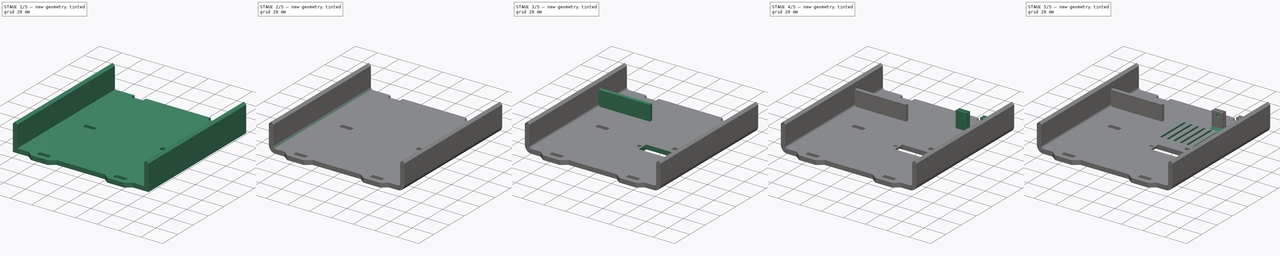
[diagram: build sequence overview — one tinted view per stage of 5, left to right]
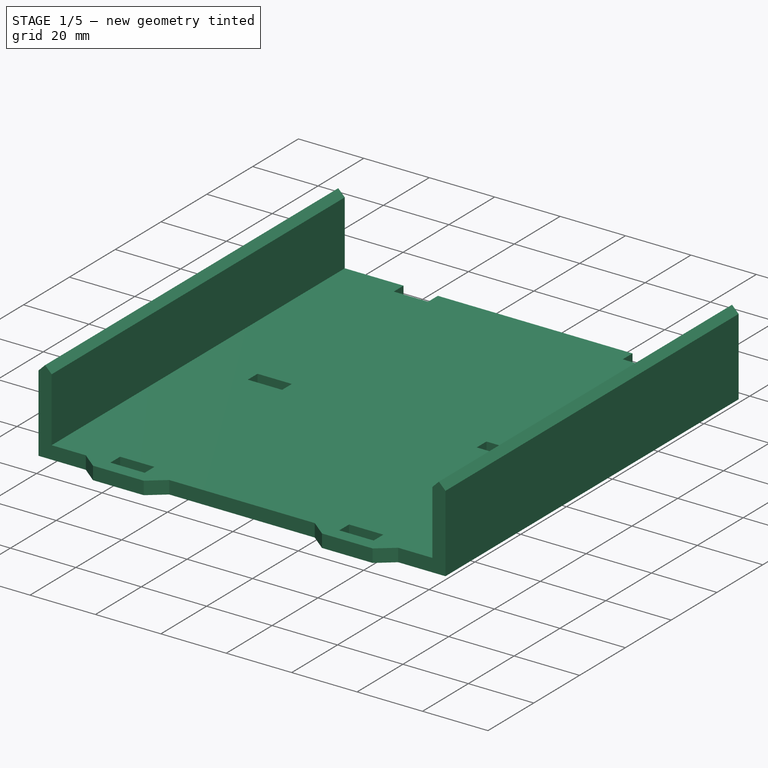
[diagram: stage 1 of 5 — iso view after this stage's code; geometry added in this stage tinted green]
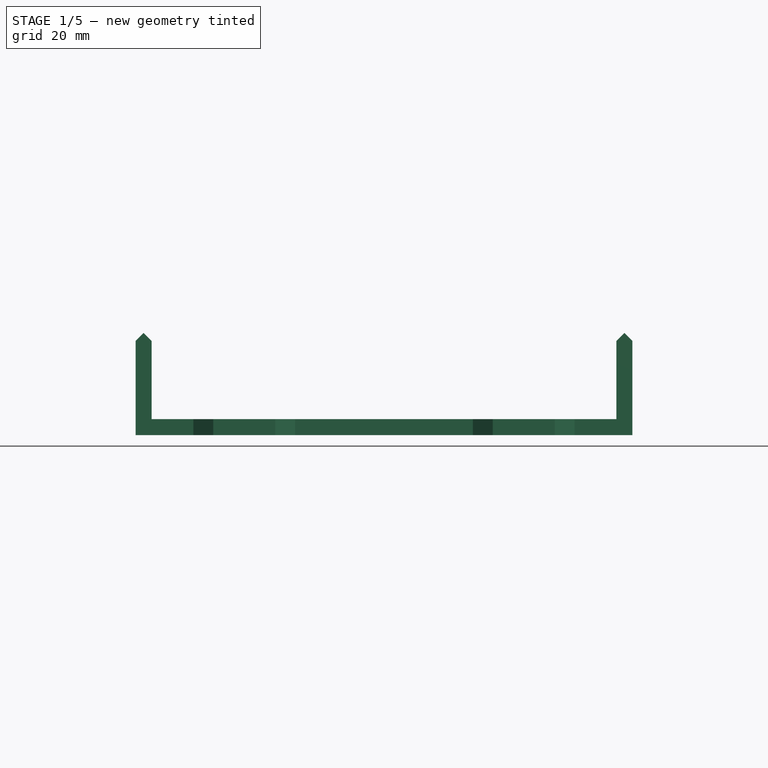
[diagram: stage 1 of 5 — front view after this stage's code; geometry added in this stage tinted green]
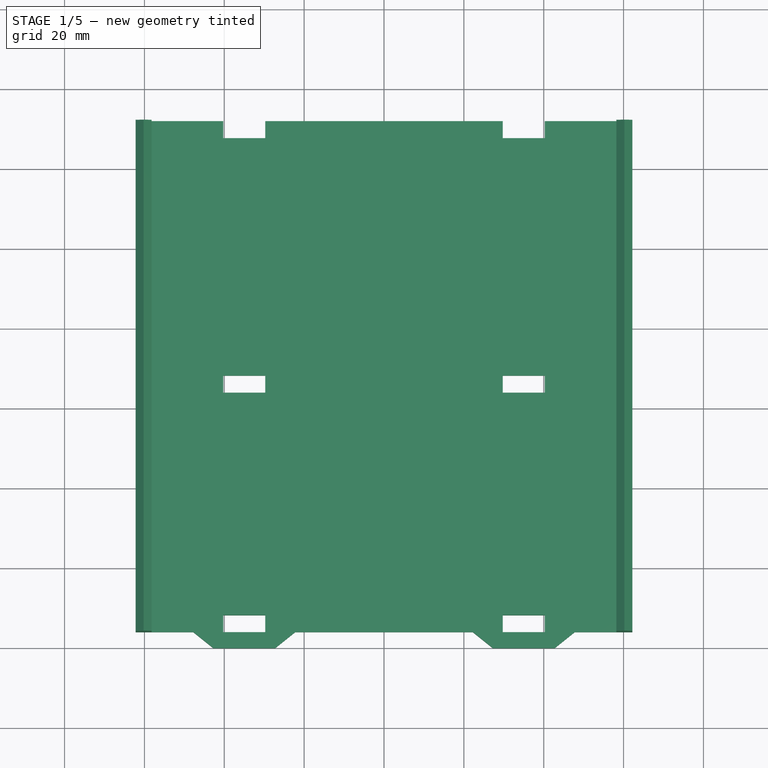
[diagram: stage 1 of 5 — top view after this stage's code; geometry added in this stage tinted green]
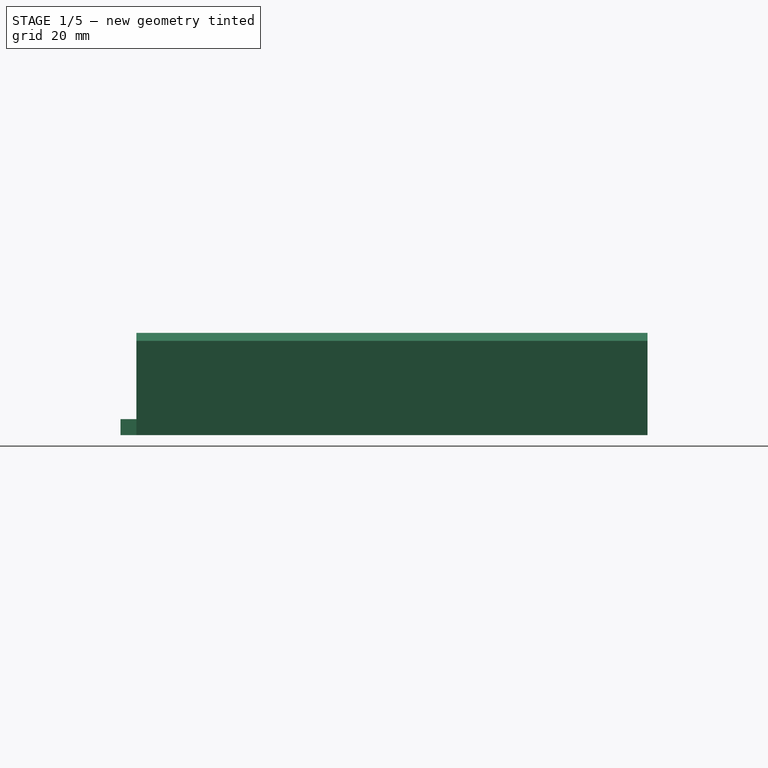
[diagram: stage 1 of 5 — right view after this stage's code; geometry added in this stage tinted green]
FCSTD DOCUMENT  (FreeCAD 0.18R16131 (Git))
Label: Front
License: All rights reserved
LicenseURL: http://en.wikipedia.org/wiki/All_rights_reserved
objects: Sketcher::SketchObject×12, PartDesign::Pocket×7, PartDesign::Pad×5, Part::Fillet×3, PartDesign::Body×2, PartDesign::Chamfer×2, Part::FeaturePython×1, PartDesign::FeatureBase×1, PartDesign::Plane×1, App::Part×1
note: 46 computed .brp shape members not serialized (recipe doc carries the construction recipe); baked Part::Feature solids carry a one-line shape summary decoded from their .brp

FEATURE [Sketcher::SketchObject] Sketch
  MapMode = 5
  Support = -> [XY_Plane001]
  sketch-geometry (4):
    g0: LineSegment StartX=-62.2 StartY=0 StartZ=0 EndX=62.2 EndY=0 EndZ=0
    g1: LineSegment StartX=62.2 StartY=0 StartZ=0 EndX=62.2 EndY=132 EndZ=0
    g2: LineSegment StartX=62.2 StartY=132 StartZ=0 EndX=-62.2 EndY=132 EndZ=0
    g3: LineSegment StartX=-62.2 StartY=132 StartZ=0 EndX=-62.2 EndY=0 EndZ=0
  constraints (11):
    c: Coincident(g0,g1)
    c: Coincident(g1,g2)
    c: Coincident(g2,g3)
    c: Coincident(g3,g0)
    c: Horizontal(g2)
    c: Vertical(g1)
    c: Vertical(g3)
    c: PointOnObject(g0,g-1)
    c: Symmetric(g0,g0,g-2)
    c: Distance(g0) = 124.4
    c: Distance(g3) = 132
FEATURE [PartDesign::Pad] Pad
  Length = 4
  Length2 = 100
  Profile = -> Sketch
  Reversed = true
  Type = 0
FEATURE [Sketcher::SketchObject] Sketch001
  MapMode = 5
  Support = -> [XY_Plane001]
  sketch-geometry (8):
    g0: LineSegment StartX=-58.2 StartY=0 StartZ=0 EndX=-62.2 EndY=0 EndZ=0
    g1: LineSegment StartX=-62.2 StartY=0 StartZ=0 EndX=-62.2 EndY=132 EndZ=0
    g2: LineSegment StartX=-62.2 StartY=132 StartZ=0 EndX=-58.2 EndY=132 EndZ=0
    g3: LineSegment StartX=-58.2 StartY=132 StartZ=0 EndX=-58.2 EndY=0 EndZ=0
    g4: LineSegment StartX=58.2 StartY=0 StartZ=0 EndX=62.2 EndY=0 EndZ=0
    g5: LineSegment StartX=62.2 StartY=0 StartZ=0 EndX=62.2 EndY=132 EndZ=0
    g6: LineSegment StartX=62.2 StartY=132 StartZ=0 EndX=58.2 EndY=132 EndZ=0
    g7: LineSegment StartX=58.2 StartY=132 StartZ=0 EndX=58.2 EndY=0 EndZ=0
  constraints (23):
    c: Coincident(g0,g1)
    c: Coincident(g1,g2)
    c: Coincident(g2,g3)
    c: Coincident(g3,g0)
    c: Horizontal(g0)
    c: Horizontal(g2)
    c: Vertical(g1)
    c: Vertical(g3)
    c: Coincident(g4,g5)
    c: Coincident(g5,g6)
    c: Coincident(g6,g7)
    c: Coincident(g7,g4)
    c: Horizontal(g4)
    c: Horizontal(g6)
    c: Vertical(g5)
    c: Vertical(g7)
    c: Symmetric(g0,g4,g-2)
    c: PointOnObject(g0,g-1)
    c: Distance(g3) = 132
    c: Equal(g3,g7)
    c: Distance(g0,g4) = 116.4
    c: Equal(g2,g6)
    c: Distance(g2) = 4
FEATURE [PartDesign::Pad] Pad001
  BaseFeature = -> Pad
  Length = 19.6
  Length2 = 100
  Profile = -> Sketch001
  Type = 0
FEATURE [Sketcher::SketchObject] Sketch002
  MapMode = 5
  Placement = pos=(0,0,0) rot=(1,0,0;1.5708rad)
  Support = -> [XZ_Plane001]
  sketch-geometry (6):
    g0: LineSegment StartX=-58.2 StartY=19.6 StartZ=0 EndX=-62.2 EndY=19.6 EndZ=0
    g1: LineSegment StartX=-62.2 StartY=19.6 StartZ=0 EndX=-60.2 EndY=21.6 EndZ=0
    g2: LineSegment StartX=-60.2 StartY=21.6 StartZ=0 EndX=-58.2 EndY=19.6 EndZ=0
    g3: LineSegment StartX=58.2 StartY=19.6 StartZ=0 EndX=62.2 EndY=19.6 EndZ=0
    g4: LineSegment StartX=62.2 StartY=19.6 StartZ=0 EndX=60.2 EndY=21.6 EndZ=0
    g5: LineSegment StartX=60.2 StartY=21.6 StartZ=0 EndX=58.2 EndY=19.6 EndZ=0
  constraints (17):
    c: Coincident(g2,g1)
    c: Coincident(g2,g0)
    c: Coincident(g1,g0)
    c: Horizontal(g0)
    c: Distance(g0) = 4
    c: Distance(g1,g0) = 2
    c: Equal(g1,g2)
    c: Coincident(g5,g4)
    c: Coincident(g5,g3)
    c: Coincident(g4,g3)
    c: Horizontal(g3)
    c: Equal(g4,g5)
    c: Equal(g0,g3)
    c: Equal(g5,g1)
    c: Symmetric(g3,g0,g-2)
    c: DistanceY(g-1,g0) = 19.6
    c: DistanceX(g-2,g0) = -62.2
FEATURE [PartDesign::Pad] Pad002
  BaseFeature = -> Pad001
  Length = 132
  Length2 = 100
  Profile = -> Sketch002
  Reversed = true
  Type = 0
FEATURE [Sketcher::SketchObject] Sketch003
  MapMode = 5
  Support = -> [XY_Plane001]
  sketch-geometry (48):
    g0: LineSegment StartX=-40.25 StartY=8.25 StartZ=0 EndX=-29.75 EndY=8.25 EndZ=0
    g1: LineSegment StartX=-29.75 StartY=8.25 StartZ=0 EndX=-29.75 EndY=4 EndZ=0
    g2: LineSegment StartX=-29.75 StartY=4 StartZ=0 EndX=-40.25 EndY=4 EndZ=0
    g3: LineSegment StartX=-40.25 StartY=4 StartZ=0 EndX=-40.25 EndY=8.25 EndZ=0
    g4: LineSegment StartX=-40.25 StartY=68.25 StartZ=0 EndX=-29.75 EndY=68.25 EndZ=0
    g5: LineSegment StartX=-29.75 StartY=68.25 StartZ=0 EndX=-29.75 EndY=64 EndZ=0
    g6: LineSegment StartX=-29.75 StartY=64 StartZ=0 EndX=-40.25 EndY=64 EndZ=0
    g7: LineSegment StartX=-40.25 StartY=64 StartZ=0 EndX=-40.25 EndY=68.25 EndZ=0
    g8: LineSegment StartX=-40.25 StartY=132 StartZ=0 EndX=-29.75 EndY=132 EndZ=0
    g9: LineSegment StartX=-29.75 StartY=132 StartZ=0 EndX=-29.75 EndY=127.75 EndZ=0
    g10: LineSegment StartX=-29.75 StartY=127.75 StartZ=0 EndX=-40.25 EndY=127.75 EndZ=0
    g11: LineSegment StartX=-40.25 StartY=127.75 StartZ=0 EndX=-40.25 EndY=132 EndZ=0
    g12: LineSegment StartX=40.25 StartY=8.25 StartZ=0 EndX=29.75 EndY=8.25 EndZ=0
    g13: LineSegment StartX=29.75 StartY=8.25 StartZ=0 EndX=29.75 EndY=4 EndZ=0
    g14: LineSegment StartX=29.75 StartY=4 StartZ=0 EndX=40.25 EndY=4 EndZ=0
    g15: LineSegment StartX=40.25 StartY=4 StartZ=0 EndX=40.25 EndY=8.25 EndZ=0
    g16: LineSegment StartX=40.25 StartY=68.25 StartZ=0 EndX=29.75 EndY=68.25 EndZ=0
    g17: LineSegment StartX=29.75 StartY=68.25 StartZ=0 EndX=29.75 EndY=64 EndZ=0
    g18: LineSegment StartX=29.75 StartY=64 StartZ=0 EndX=40.25 EndY=64 EndZ=0
    g19: LineSegment StartX=40.25 StartY=64 StartZ=0 EndX=40.25 EndY=68.25 EndZ=0
    g20: LineSegment StartX=40.25 StartY=132 StartZ=0 EndX=29.75 EndY=132 EndZ=0
    g21: LineSegment StartX=29.75 StartY=132 StartZ=0 EndX=29.75 EndY=127.75 EndZ=0
    g22: LineSegment StartX=29.75 StartY=127.75 StartZ=0 EndX=40.25 EndY=127.75 EndZ=0
    g23: LineSegment StartX=40.25 StartY=127.75 StartZ=0 EndX=40.25 EndY=132 EndZ=0
    g24: LineSegment [constr] StartX=-29.75 StartY=8.25 StartZ=0 EndX=-29.75 EndY=64 EndZ=0
    g25: LineSegment [constr] StartX=-29.75 StartY=68.25 StartZ=0 EndX=-29.75 EndY=127.75 EndZ=0
    g26: LineSegment [constr] StartX=29.75 StartY=127.75 StartZ=0 EndX=29.75 EndY=68.25 EndZ=0
    g27: LineSegment [constr] StartX=29.75 StartY=64 StartZ=0 EndX=29.75 EndY=8.25 EndZ=0
    g28: LineSegment StartX=-42.75 StartY=0 StartZ=0 EndX=-27.25 EndY=0 EndZ=0
    g29: LineSegment StartX=-27.25 StartY=0 StartZ=0 EndX=-22.25 EndY=4 EndZ=0
    g30: LineSegment StartX=-22.25 StartY=4 StartZ=0 EndX=22.25 EndY=4 EndZ=0
    g31: LineSegment StartX=22.25 StartY=4 StartZ=0 EndX=27.25 EndY=0 EndZ=0
    g32: LineSegment StartX=27.25 StartY=0 StartZ=0 EndX=42.75 EndY=-1e-16 EndZ=0
    g33: LineSegment StartX=42.75 StartY=-1e-16 StartZ=0 EndX=47.75 EndY=4 EndZ=0
    g34: LineSegment StartX=47.75 StartY=4 StartZ=0 EndX=90 EndY=4 EndZ=0
    g35: LineSegment StartX=90 StartY=4 StartZ=0 EndX=90 EndY=-46 EndZ=0
    g36: LineSegment StartX=90 StartY=-46 StartZ=0 EndX=-90 EndY=-46 EndZ=0
    g37: LineSegment StartX=-42.75 StartY=0 StartZ=0 EndX=-47.75 EndY=4 EndZ=0
    g38: LineSegment StartX=-47.75 StartY=4 StartZ=0 EndX=-90 EndY=4 EndZ=0
    g39: LineSegment StartX=-90 StartY=4 StartZ=0 EndX=-90 EndY=-46 EndZ=0
    g40: LineSegment [constr] StartX=-47.75 StartY=4 StartZ=0 EndX=-40.25 EndY=4 EndZ=0
    g41: LineSegment [constr] StartX=-29.75 StartY=4 StartZ=0 EndX=-22.25 EndY=4 EndZ=0
    g42: LineSegment [constr] StartX=22.25 StartY=4 StartZ=0 EndX=29.75 EndY=4 EndZ=0
    g43: LineSegment [constr] StartX=40.25 StartY=4 StartZ=0 EndX=47.75 EndY=4 EndZ=0
    g44: LineSegment [constr] StartX=29.75 StartY=4 StartZ=0 EndX=27.25 EndY=0 EndZ=0
    g45: LineSegment [constr] StartX=40.25 StartY=4 StartZ=0 EndX=42.75 EndY=0 EndZ=0
    g46: LineSegment [constr] StartX=-40.25 StartY=4 StartZ=0 EndX=-42.75 EndY=0 EndZ=0
    g47: LineSegment [constr] StartX=-29.75 StartY=4 StartZ=0 EndX=-27.25 EndY=0 EndZ=0
  constraints (131):
    c: Coincident(g0,g1)
    c: Coincident(g1,g2)
    c: Coincident(g2,g3)
    c: Coincident(g3,g0)
    c: Horizontal(g0)
    c: Horizontal(g2)
    c: Vertical(g1)
    c: Vertical(g3)
    c: Coincident(g4,g5)
    c: Coincident(g5,g6)
    c: Coincident(g6,g7)
    c: Coincident(g7,g4)
    c: Horizontal(g4)
    c: Horizontal(g6)
    c: Vertical(g5)
    c: Vertical(g7)
    c: Coincident(g8,g9)
    c: Coincident(g9,g10)
    c: Coincident(g10,g11)
    c: Coincident(g11,g8)
    c: Horizontal(g8)
    c: Horizontal(g10)
    c: Vertical(g9)
    c: Vertical(g11)
    c: Coincident(g12,g13)
    c: Coincident(g13,g14)
    c: Coincident(g14,g15)
    c: Coincident(g15,g12)
    c: Horizontal(g12)
    c: Horizontal(g14)
    c: Vertical(g13)
    c: Vertical(g15)
    c: Coincident(g16,g17)
    c: Coincident(g17,g18)
    c: Coincident(g18,g19)
    c: Coincident(g19,g16)
    c: Horizontal(g16)
    c: Horizontal(g18)
    c: Vertical(g17)
    c: Vertical(g19)
    c: Coincident(g20,g21)
    c: Coincident(g21,g22)
    c: Coincident(g22,g23)
    c: Coincident(g23,g20)
    c: Horizontal(g20)
    c: Horizontal(g22)
    c: Vertical(g21)
    c: Vertical(g23)
    c: Equal(g10,g22)
    c: Equal(g22,g18)
    c: Equal(g18,g6)
    c: Equal(g6,g2)
    c: Equal(g2,g14)
    c: Equal(g11,g21)
    c: Equal(g21,g17)
    c: Equal(g17,g7)
    c: Equal(g7,g3)
    c: Equal(g3,g13)
    c: Coincident(g24,g0)
    c: Coincident(g24,g5)
    c: Vertical(g24)
    c: Coincident(g25,g4)
    c: Coincident(g25,g9)
    c: Vertical(g25)
    c: Coincident(g26,g21)
    c: Coincident(g26,g16)
    c: Coincident(g27,g17)
    c: Coincident(g27,g12)
    c: Vertical(g27)
    c: Vertical(g26)
    c: Symmetric(g1,g13,g-2)
    c: Distance(g1,g13) = 59.5
    c: Distance(g2) = 10.5
    c: Distance(g1) = 4.25
    c: DistanceY(g-1,g2) = 4
    c: Distance(g24) = 55.75
    c: Distance(g25) = 59.5
    c: Equal(g24,g27)
    c: Equal(g25,g26)
    c: PointOnObject(g28,g-1)
    c: Horizontal(g28)
    c: Coincident(g29,g28)
    c: Coincident(g30,g29)
    c: Horizontal(g30)
    c: Coincident(g31,g30)
    c: PointOnObject(g31,g-1)
    c: Coincident(g32,g31)
    c: Coincident(g33,g32)
    c: Coincident(g34,g33)
    c: Horizontal(g34)
    c: Coincident(g35,g34)
    c: Vertical(g35)
    c: Coincident(g36,g35)
    c: Horizontal(g36)
    c: Coincident(g37,g28)
    c: Coincident(g38,g37)
    c: Coincident(g39,g38)
    c: Coincident(g39,g36)
    c: Equal(g39,g35)
    c: Vertical(g39)
    c: Equal(g37,g29)
    c: Equal(g29,g31)
    c: Equal(g31,g33)
    c: Coincident(g40,g37)
    c: Coincident(g40,g2)
    c: Coincident(g41,g1)
    c: Coincident(g41,g29)
    c: Coincident(g42,g30)
    c: Coincident(g42,g13)
    c: Coincident(g43,g14)
    c: Coincident(g43,g33)
    c: Equal(g41,g40)
    c: Equal(g42,g43)
    c: Coincident(g44,g13)
    c: Coincident(g44,g31)
    c: Coincident(g45,g14)
    c: Coincident(g45,g32)
    c: Coincident(g46,g2)
    c: Coincident(g46,g28)
    c: Coincident(g47,g1)
    c: Coincident(g47,g28)
    c: Equal(g46,g47)
    c: Equal(g47,g44)
    c: Equal(g44,g45)
    c: Equal(g32,g28)
    c: Horizontal(g41)
    c: DistanceX(g1,g28) = 2.5
    c: DistanceX(g28,g29) = 5
    c: Distance(g39) = 50
    c: Distance(g36) = 180
    c: Equal(g38,g34)
FEATURE [PartDesign::Pocket] Pocket
  BaseFeature = -> Pad002
  Length = 5
  Length2 = 100
  Midplane = true
  Profile = -> Sketch003
  Type = 1
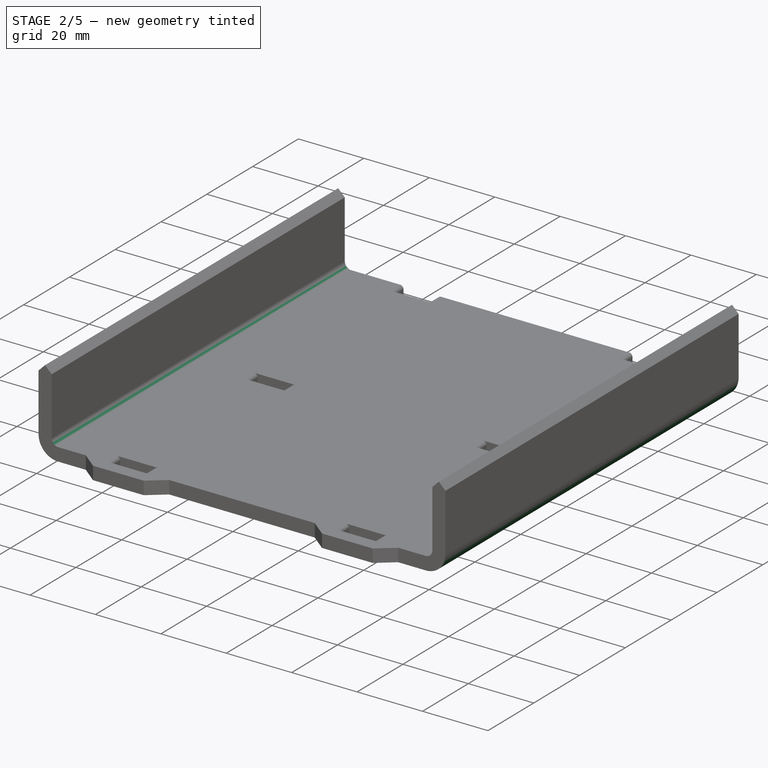
[diagram: stage 2 of 5 — iso view after this stage's code; geometry added in this stage tinted green]
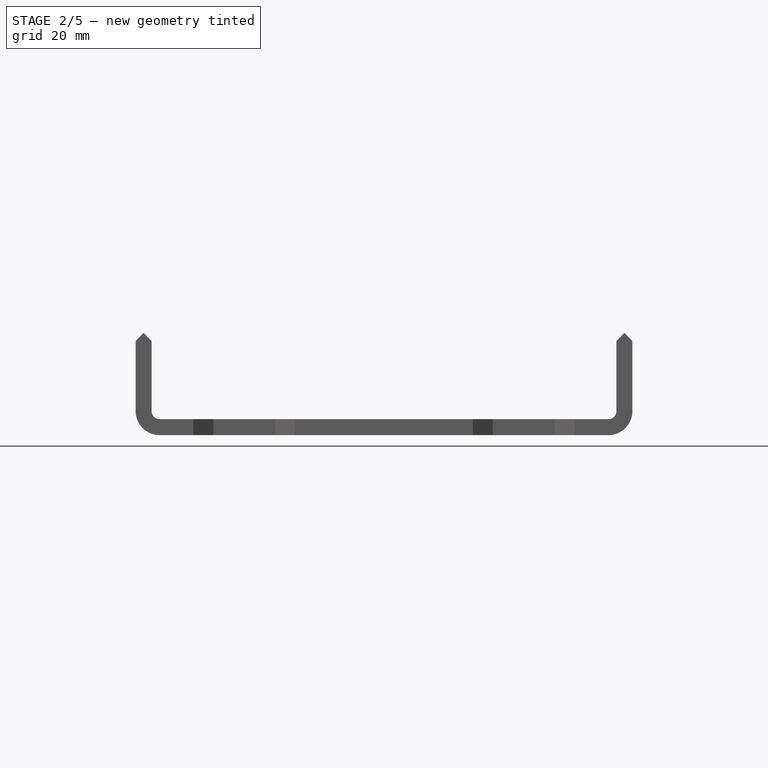
[diagram: stage 2 of 5 — front view after this stage's code; geometry added in this stage tinted green]
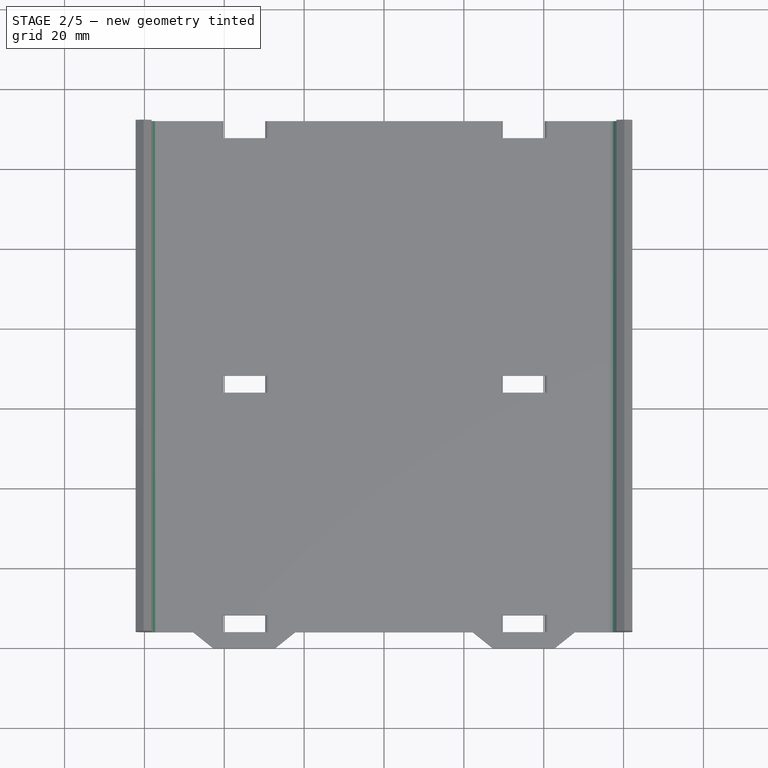
[diagram: stage 2 of 5 — top view after this stage's code; geometry added in this stage tinted green]
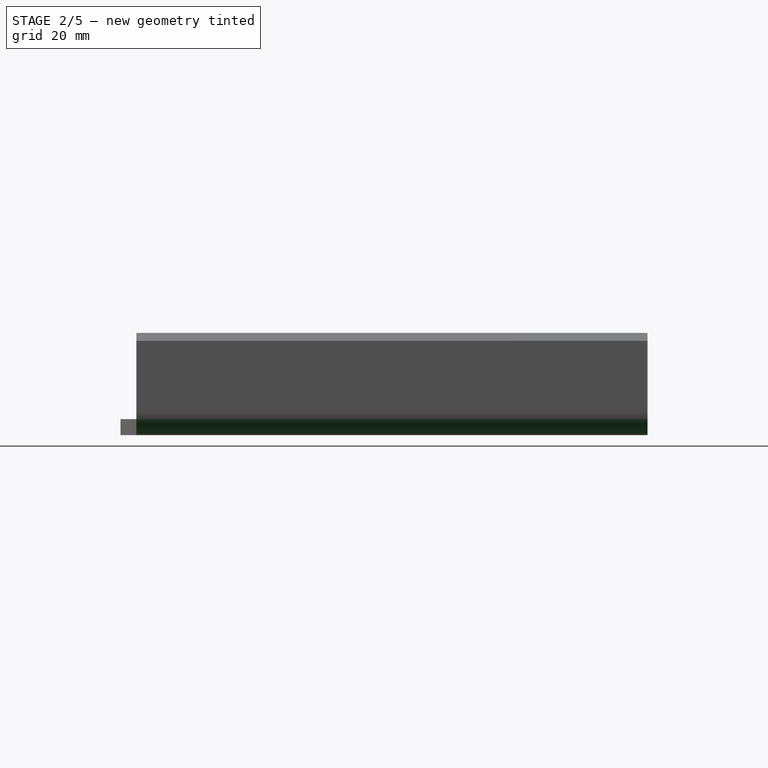
[diagram: stage 2 of 5 — right view after this stage's code; geometry added in this stage tinted green]
FEATURE [PartDesign::Body] Body  label="FrontPartBody"
  Group = -> [Sketch,Pad,Sketch001,Pad001,Sketch002,Pad002,Sketch003,Pocket]
  Origin = -> Origin001
  Tip = -> Pocket
FEATURE [Part::FeaturePython] refine  label="FrontPartBody_Refined"  # WARN: FeaturePython — macro-defined, semantics opaque (R4)
  Base = -> Body
FEATURE [Part::Fillet] Fillet
  Base = -> refine
  Edges = 2 edges r=6: [Edge45,Edge55]
FEATURE [Part::Fillet] Fillet001
  Base = -> Fillet
  Edges = 2 edges r=2: [Edge128,Edge129]
FEATURE [Part::Fillet] Fillet002
  Base = -> Fillet001
  Edges = 12 edges r=1: [Edge18,Edge21,Edge25,Edge29,Edge36,Edge38,Edge40,Edge42,Edge43,Edge45,Edge47,Edge49]
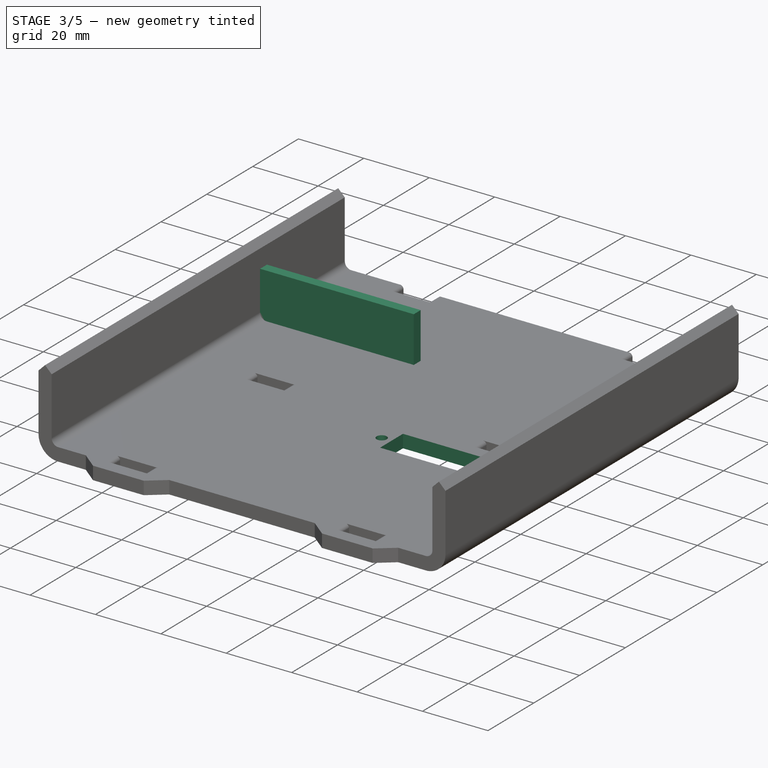
[diagram: stage 3 of 5 — iso view after this stage's code; geometry added in this stage tinted green]
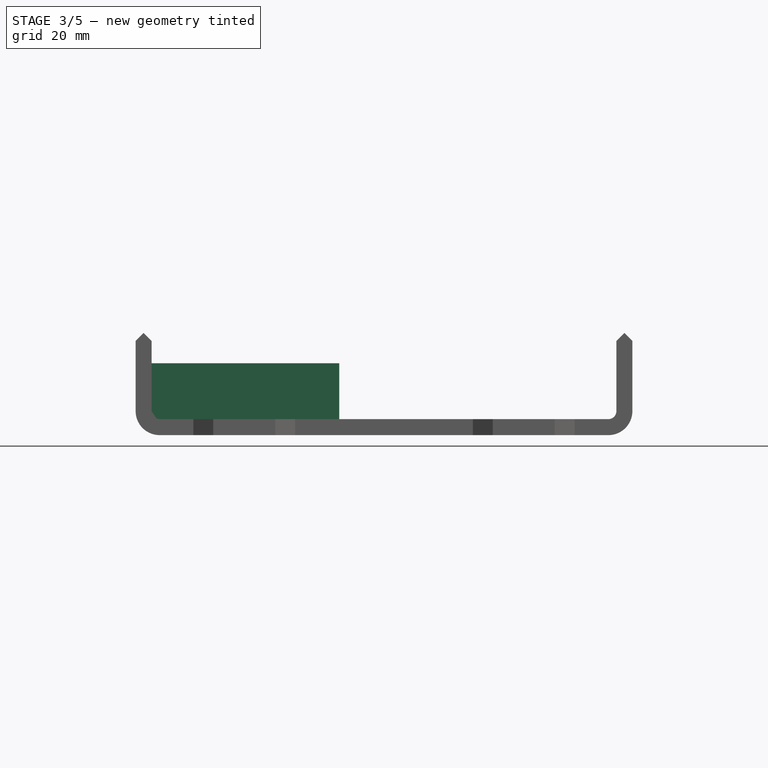
[diagram: stage 3 of 5 — front view after this stage's code; geometry added in this stage tinted green]
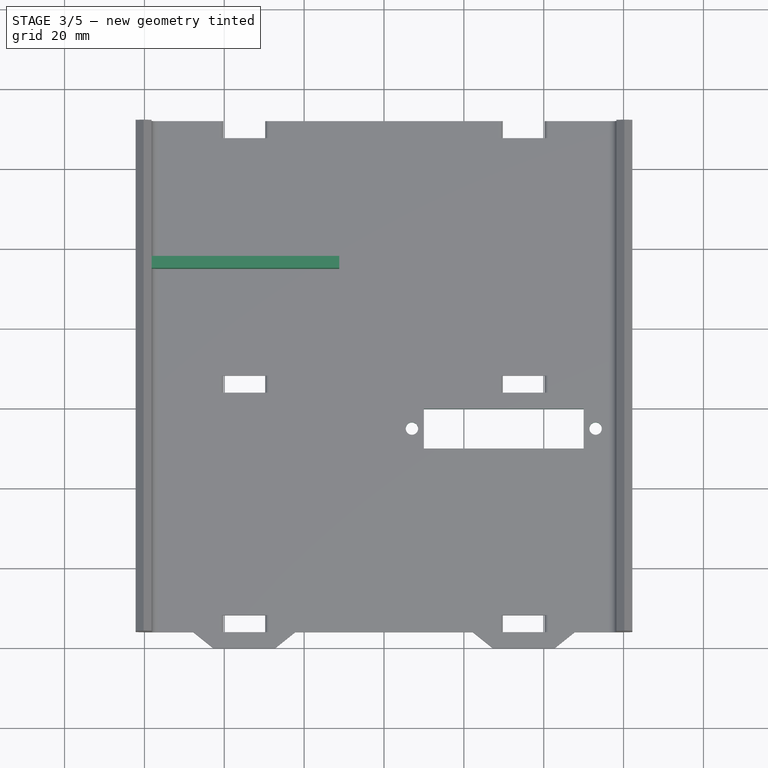
[diagram: stage 3 of 5 — top view after this stage's code; geometry added in this stage tinted green]
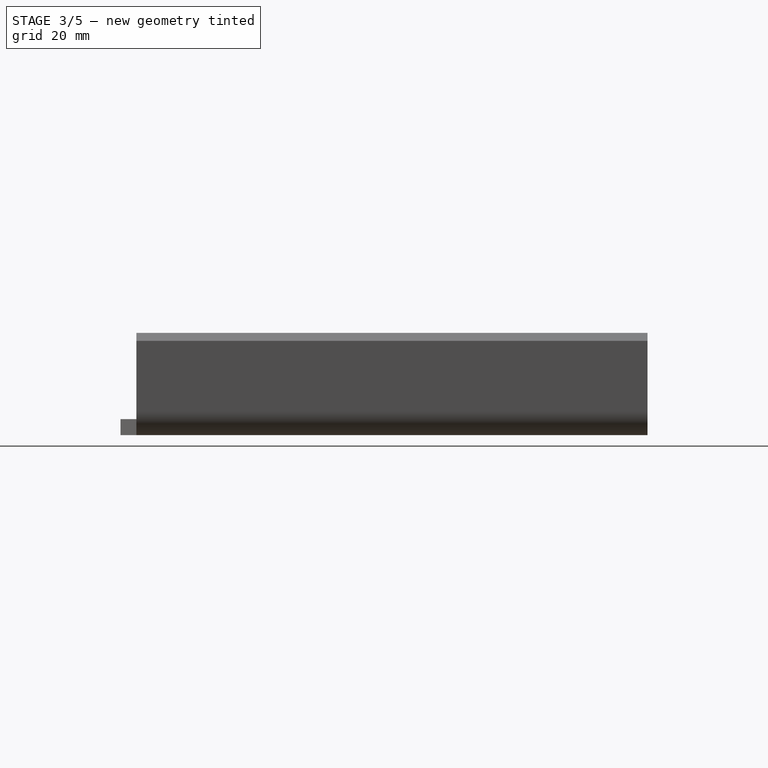
[diagram: stage 3 of 5 — right view after this stage's code; geometry added in this stage tinted green]
FEATURE [PartDesign::FeatureBase] BaseFeature
  BaseFeature = -> Fillet002
FEATURE [Sketcher::SketchObject] Sketch004
  MapMode = 5
  Support = -> [XY_Plane002]
  sketch-geometry (4):
    g0: LineSegment StartX=-58.2 StartY=98 StartZ=0 EndX=-11.2 EndY=98 EndZ=0
    g1: LineSegment StartX=-11.2 StartY=98 StartZ=0 EndX=-11.2 EndY=95 EndZ=0
    g2: LineSegment StartX=-11.2 StartY=95 StartZ=0 EndX=-58.2 EndY=95 EndZ=0
    g3: LineSegment StartX=-58.2 StartY=95 StartZ=0 EndX=-58.2 EndY=98 EndZ=0
  constraints (12):
    c: Coincident(g0,g1)
    c: Coincident(g1,g2)
    c: Coincident(g2,g3)
    c: Coincident(g3,g0)
    c: Horizontal(g0)
    c: Horizontal(g2)
    c: Vertical(g1)
    c: Vertical(g3)
    c: Distance(g3) = 3
    c: Distance(g0) = 47
    c: DistanceY(g-1,g0) = 98
    c: DistanceX(g-2,g1) = -11.2
FEATURE [PartDesign::Pad] Pad003
  BaseFeature = -> BaseFeature
  Length = 14
  Length2 = 100
  Profile = -> Sketch004
  Type = 0
FEATURE [Sketcher::SketchObject] Sketch005
  MapMode = 5
  Support = -> [XY_Plane002]
  sketch-geometry (7):
    g0: LineSegment StartX=10 StartY=60 StartZ=0 EndX=50 EndY=60 EndZ=0
    g1: LineSegment StartX=50 StartY=60 StartZ=0 EndX=50 EndY=50 EndZ=0
    g2: LineSegment StartX=50 StartY=50 StartZ=0 EndX=10 EndY=50 EndZ=0
    g3: LineSegment StartX=10 StartY=50 StartZ=0 EndX=10 EndY=60 EndZ=0
    g4: Circle CenterX=7 CenterY=55 CenterZ=0 NormalX=0 NormalY=0 NormalZ=1 AngleXU=0 Radius=1.55
    g5: Circle CenterX=53 CenterY=55 CenterZ=0 NormalX=0 NormalY=0 NormalZ=1 AngleXU=0 Radius=1.55
    g6: LineSegment [constr] StartX=7 StartY=55 StartZ=0 EndX=53 EndY=55 EndZ=0
  constraints (20):
    c: Coincident(g0,g1)
    c: Coincident(g1,g2)
    c: Coincident(g2,g3)
    c: Coincident(g3,g0)
    c: Horizontal(g0)
    c: Horizontal(g2)
    c: Vertical(g1)
    c: Vertical(g3)
    c: DistanceY(g-1,g2) = 50
    c: DistanceX(g-2,g2) = 10
    c: Distance(g2) = 40
    c: Distance(g1) = 10
    c: Distance(g5,g1) = 3
    c: Equal(g5,g4)
    c: Distance(g4,g3) = 3
    c: Radius(g4) = 1.55
    c: DistanceY(g2,g4) = 5
    c: Horizontal(g6)
    c: Coincident(g6,g4)
    c: Coincident(g6,g5)
FEATURE [PartDesign::Pocket] Pocket001
  BaseFeature = -> Pad003
  Length = 5
  Length2 = 100
  Profile = -> Sketch005
  Type = 1
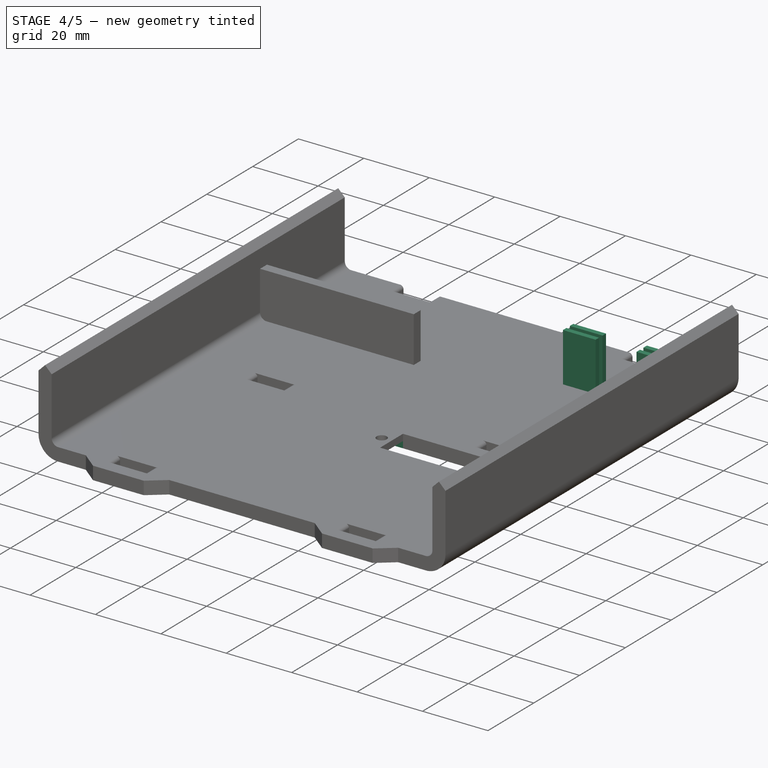
[diagram: stage 4 of 5 — iso view after this stage's code; geometry added in this stage tinted green]
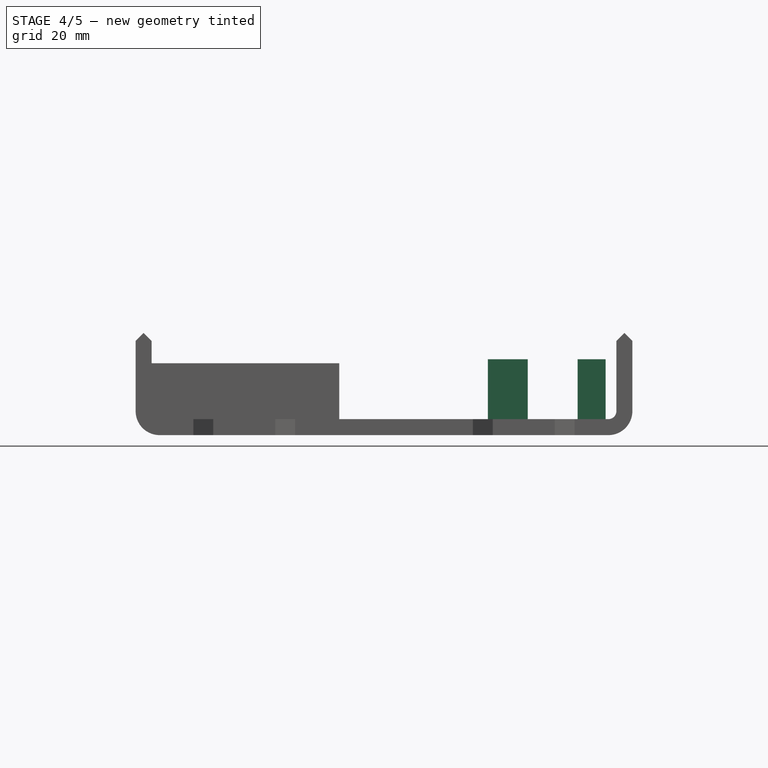
[diagram: stage 4 of 5 — front view after this stage's code; geometry added in this stage tinted green]
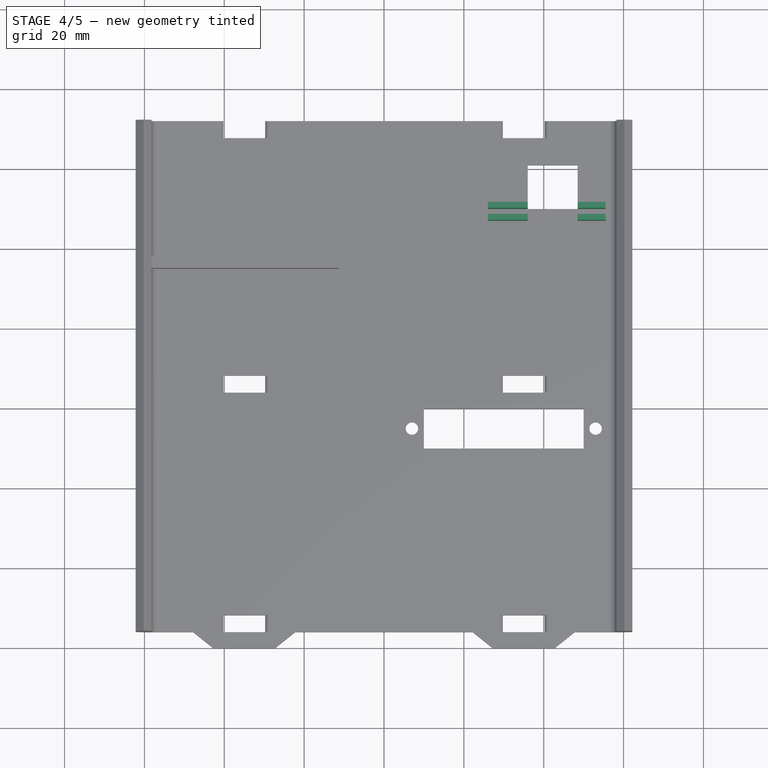
[diagram: stage 4 of 5 — top view after this stage's code; geometry added in this stage tinted green]
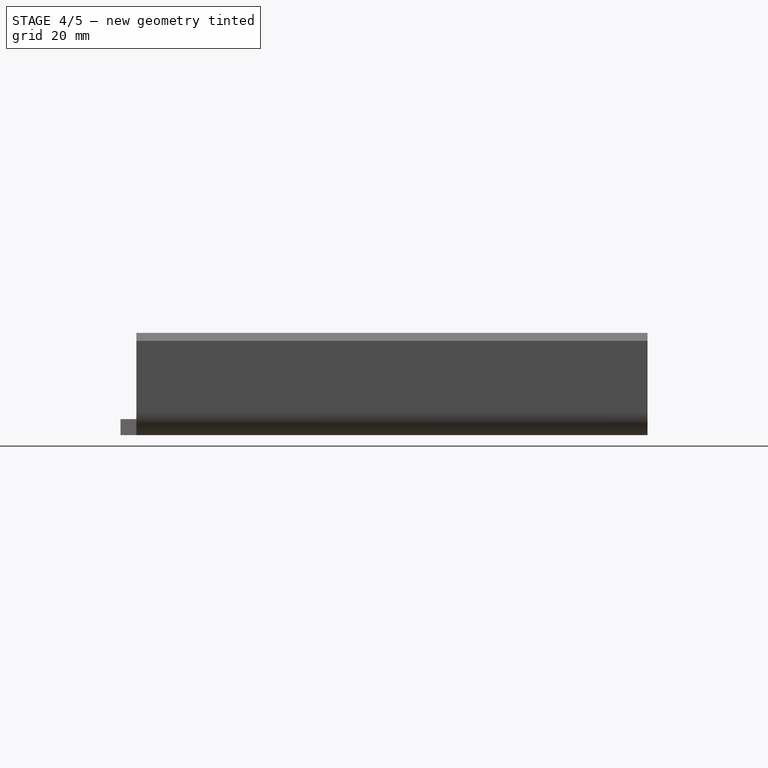
[diagram: stage 4 of 5 — right view after this stage's code; geometry added in this stage tinted green]
FEATURE [PartDesign::Plane] DatumPlane
  AttachmentOffset = pos=(0,0,-4) rot=(0,0,1;0rad)
  Length = 24
  MapMode = 5
  Placement = pos=(0,0,-4) rot=(0,0,1;0rad)
  ResizeMode = 0
  Support = -> [XY_Plane002]
  Width = 24
FEATURE [Sketcher::SketchObject] Sketch006
  MapMode = 5
  Placement = pos=(0,0,-4) rot=(0,0,1;0rad)
  Support = -> [DatumPlane]
  sketch-geometry (4):
    g0: LineSegment StartX=4 StartY=60 StartZ=0 EndX=56 EndY=60 EndZ=0
    g1: LineSegment StartX=56 StartY=60 StartZ=0 EndX=56 EndY=50 EndZ=0
    g2: LineSegment StartX=56 StartY=50 StartZ=0 EndX=4 EndY=50 EndZ=0
    g3: LineSegment StartX=4 StartY=50 StartZ=0 EndX=4 EndY=60 EndZ=0
  constraints (12):
    c: Coincident(g0,g1)
    c: Coincident(g1,g2)
    c: Coincident(g2,g3)
    c: Coincident(g3,g0)
    c: Horizontal(g0)
    c: Horizontal(g2)
    c: Vertical(g1)
    c: Vertical(g3)
    c: Distance(g1) = 10
    c: Distance(g0) = 52
    c: DistanceY(g-1,g2) = 50
    c: DistanceX(g-2,g2) = 4
FEATURE [PartDesign::Pocket] Pocket002
  BaseFeature = -> Pocket001
  Length = 2
  Length2 = 100
  Profile = -> Sketch006
  Reversed = true
  Type = 0
FEATURE [Sketcher::SketchObject] Sketch007
  MapMode = 5
  Support = -> [XY_Plane002]
  sketch-geometry (4):
    g0: LineSegment StartX=36 StartY=121 StartZ=0 EndX=48.5 EndY=121 EndZ=0
    g1: LineSegment StartX=48.5 StartY=121 StartZ=0 EndX=48.5 EndY=110 EndZ=0
    g2: LineSegment StartX=48.5 StartY=110 StartZ=0 EndX=36 EndY=110 EndZ=0
    g3: LineSegment StartX=36 StartY=110 StartZ=0 EndX=36 EndY=121 EndZ=0
  constraints (12):
    c: Coincident(g0,g1)
    c: Coincident(g1,g2)
    c: Coincident(g2,g3)
    c: Coincident(g3,g0)
    c: Horizontal(g0)
    c: Horizontal(g2)
    c: Vertical(g1)
    c: Vertical(g3)
    c: Distance(g0) = 12.5
    c: Distance(g3) = 11
    c: Distance(g2,g-2) = 36
    c: DistanceY(g-1,g2) = 110
FEATURE [PartDesign::Pocket] Pocket003
  BaseFeature = -> Pocket002
  Length = 5
  Length2 = 100
  Profile = -> Sketch007
  Type = 1
FEATURE [Sketcher::SketchObject] Sketch008
  MapMode = 5
  Support = -> [XY_Plane002]
  sketch-geometry (9):
    g0: LineSegment StartX=48.5 StartY=111.5 StartZ=0 EndX=55.5 EndY=111.5 EndZ=0
    g1: LineSegment StartX=55.5 StartY=111.5 StartZ=0 EndX=55.5 EndY=107 EndZ=0
    g2: LineSegment StartX=55.5 StartY=107 StartZ=0 EndX=48.5 EndY=107 EndZ=0
    g3: LineSegment StartX=48.5 StartY=107 StartZ=0 EndX=48.5 EndY=111.5 EndZ=0
    g4: LineSegment StartX=36 StartY=111.5 StartZ=0 EndX=26 EndY=111.5 EndZ=0
    g5: LineSegment StartX=26 StartY=111.5 StartZ=0 EndX=26 EndY=107 EndZ=0
    g6: LineSegment StartX=26 StartY=107 StartZ=0 EndX=36 EndY=107 EndZ=0
    g7: LineSegment StartX=36 StartY=107 StartZ=0 EndX=36 EndY=111.5 EndZ=0
    g8: LineSegment [constr] StartX=48.5 StartY=107 StartZ=0 EndX=36 EndY=107 EndZ=0
  constraints (26):
    c: Coincident(g0,g1)
    c: Coincident(g1,g2)
    c: Coincident(g2,g3)
    c: Coincident(g3,g0)
    c: Horizontal(g0)
    c: Horizontal(g2)
    c: Vertical(g1)
    c: Vertical(g3)
    c: Distance(g3) = 4.5
    c: Distance(g0) = 7
    c: Distance(g2,g-1) = 107
    c: Coincident(g4,g5)
    c: Coincident(g5,g6)
    c: Coincident(g6,g7)
    c: Coincident(g7,g4)
    c: Horizontal(g4)
    c: Horizontal(g6)
    c: Vertical(g5)
    c: Vertical(g7)
    c: Distance(g5) = 4.5
    c: Coincident(g8,g2)
    c: Coincident(g8,g6)
    c: Horizontal(g8)
    c: Distance(g4) = 10
    c: Distance(g8) = 12.5
    c: DistanceX(g-2,g5) = 26
FEATURE [PartDesign::Pad] Pad004
  BaseFeature = -> Pocket003
  Length = 15
  Length2 = 100
  Profile = -> Sketch008
  Type = 0
FEATURE [Sketcher::SketchObject] Sketch009
  MapMode = 5
  Support = -> [XY_Plane002]
  sketch-geometry (9):
    g0: LineSegment StartX=48.5 StartY=110 StartZ=0 EndX=55.5 EndY=110 EndZ=0
    g1: LineSegment StartX=55.5 StartY=110 StartZ=0 EndX=55.5 EndY=108.5 EndZ=0
    g2: LineSegment StartX=55.5 StartY=108.5 StartZ=0 EndX=48.5 EndY=108.5 EndZ=0
    g3: LineSegment StartX=48.5 StartY=108.5 StartZ=0 EndX=48.5 EndY=110 EndZ=0
    g4: LineSegment StartX=36 StartY=110 StartZ=0 EndX=26 EndY=110 EndZ=0
    g5: LineSegment StartX=26 StartY=110 StartZ=0 EndX=26 EndY=108.5 EndZ=0
    g6: LineSegment StartX=26 StartY=108.5 StartZ=0 EndX=36 EndY=108.5 EndZ=0
    g7: LineSegment StartX=36 StartY=108.5 StartZ=0 EndX=36 EndY=110 EndZ=0
    g8: LineSegment [constr] StartX=36 StartY=110 StartZ=0 EndX=48.5 EndY=110 EndZ=0
  constraints (26):
    c: Coincident(g0,g1)
    c: Coincident(g1,g2)
    c: Coincident(g2,g3)
    c: Coincident(g3,g0)
    c: Horizontal(g0)
    c: Horizontal(g2)
    c: Vertical(g1)
    c: Vertical(g3)
    c: Coincident(g4,g5)
    c: Coincident(g5,g6)
    c: Coincident(g6,g7)
    c: Coincident(g7,g4)
    c: Horizontal(g4)
    c: Horizontal(g6)
    c: Vertical(g5)
    c: Vertical(g7)
    c: Horizontal(g8)
    c: Coincident(g8,g4)
    c: Coincident(g0,g8)
    c: Distance(g0) = 7
    c: Distance(g8) = 12.5
    c: Equal(g3,g7)
    c: Distance(g3) = 1.5
    c: Distance(g4) = 10
    c: DistanceX(g-2,g5) = 26
    c: DistanceY(g-1,g5) = 108.5
FEATURE [PartDesign::Pocket] Pocket004
  BaseFeature = -> Pad004
  Length = 5
  Length2 = 100
  Profile = -> Sketch009
  Reversed = true
  Type = 1
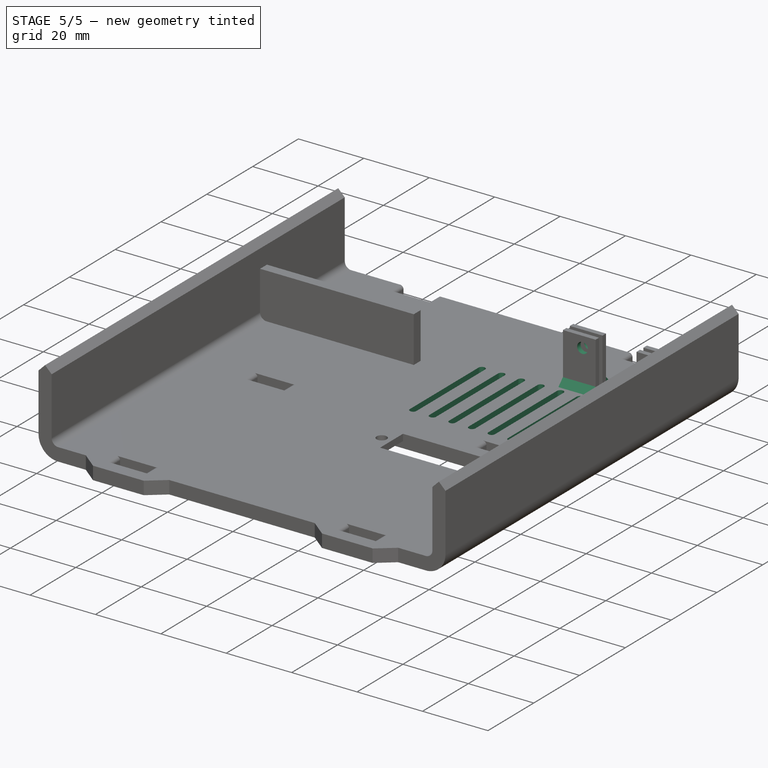
[diagram: stage 5 of 5 — iso view after this stage's code; geometry added in this stage tinted green]
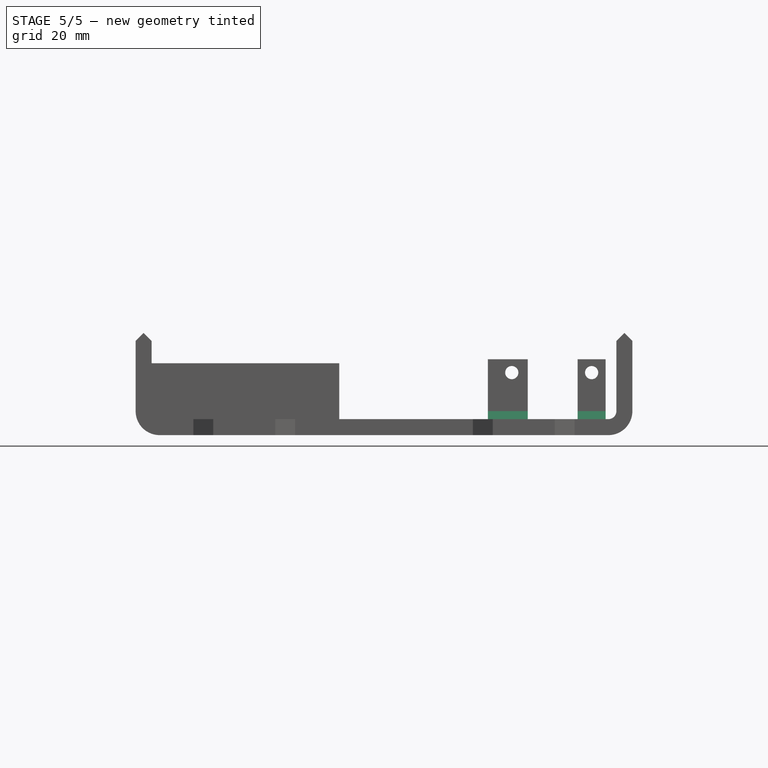
[diagram: stage 5 of 5 — front view after this stage's code; geometry added in this stage tinted green]
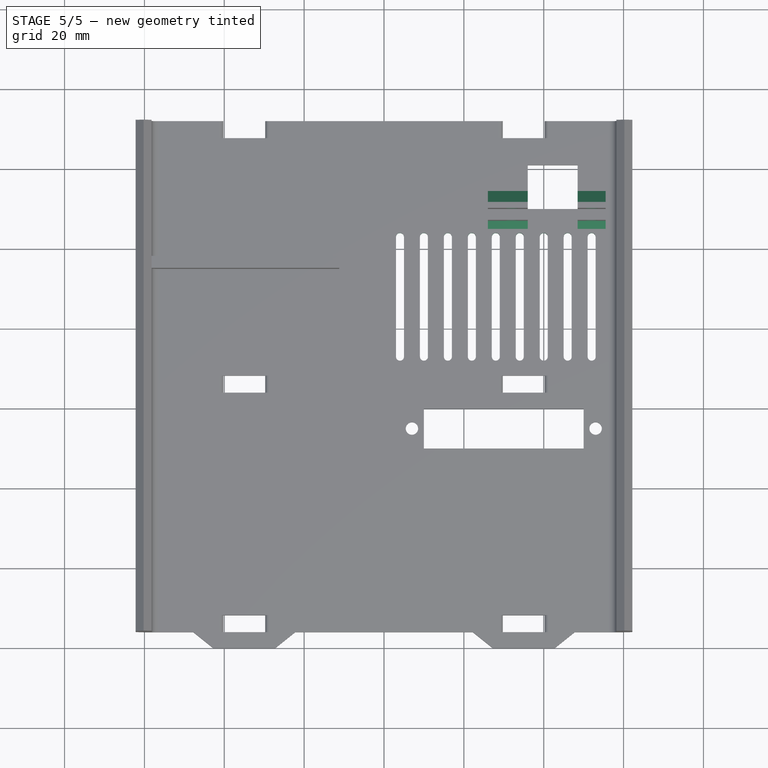
[diagram: stage 5 of 5 — top view after this stage's code; geometry added in this stage tinted green]
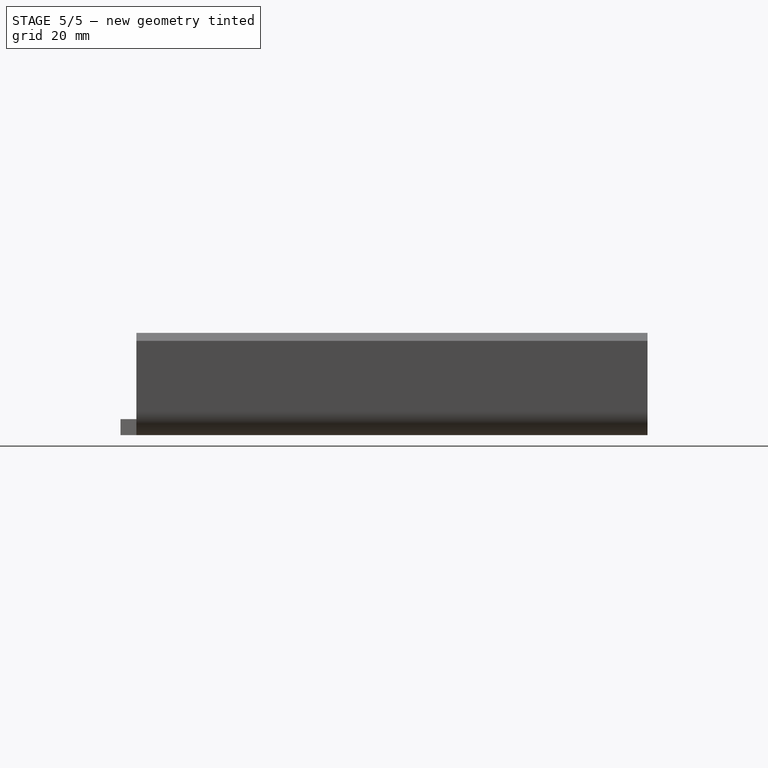
[diagram: stage 5 of 5 — right view after this stage's code; geometry added in this stage tinted green]
FEATURE [Sketcher::SketchObject] Sketch010
  MapMode = 5
  Placement = pos=(0,0,0) rot=(1,0,0;1.5708rad)
  Support = -> [XZ_Plane002]
  sketch-geometry (4):
    g0: Circle CenterX=32 CenterY=11.65 CenterZ=0 NormalX=0 NormalY=0 NormalZ=1 AngleXU=0 Radius=1.65
    g1: Circle CenterX=52 CenterY=11.65 CenterZ=0 NormalX=0 NormalY=0 NormalZ=1 AngleXU=0 Radius=1.65
    g2: LineSegment [constr] StartX=32 StartY=11.65 StartZ=0 EndX=52 EndY=11.65 EndZ=0
    g3: LineSegment [constr] StartX=52 StartY=10 StartZ=0 EndX=32 EndY=10 EndZ=0
  constraints (11):
    c: Horizontal(g2)
    c: Coincident(g2,g0)
    c: Coincident(g2,g1)
    c: Radius(g1) = 1.65
    c: Equal(g0,g1)
    c: Tangent(g3,g1)
    c: Tangent(g3,g0) = 1.5708
    c: PointOnObject(g3,g1)
    c: DistanceY(g-1,g3) = 10
    c: Distance(g2) = 20
    c: DistanceX(g-2,g0) = 32
FEATURE [PartDesign::Pocket] Pocket005
  BaseFeature = -> Pocket004
  Length = 5
  Length2 = 100
  Profile = -> Sketch010
  Type = 1
FEATURE [Sketcher::SketchObject] Sketch011
  MapMode = 5
  Support = -> [XY_Plane002]
  sketch-geometry (44):
    g0: ArcOfCircle CenterX=4 CenterY=103 CenterZ=0 NormalX=0 NormalY=0 NormalZ=1 AngleXU=0 Radius=1 StartAngle=-3.6e-15 EndAngle=3.14159
    g1: ArcOfCircle CenterX=4 CenterY=73 CenterZ=0 NormalX=0 NormalY=0 NormalZ=1 AngleXU=0 Radius=1 StartAngle=3.14159 EndAngle=6.28319
    g2: LineSegment StartX=3 StartY=103 StartZ=0 EndX=3 EndY=73 EndZ=0
    g3: LineSegment StartX=5 StartY=103 StartZ=0 EndX=5 EndY=73 EndZ=0
    g4: ArcOfCircle CenterX=10 CenterY=103 CenterZ=0 NormalX=0 NormalY=0 NormalZ=1 AngleXU=0 Radius=1 StartAngle=-1.8e-15 EndAngle=3.14159
    g5: ArcOfCircle CenterX=10 CenterY=73 CenterZ=0 NormalX=0 NormalY=0 NormalZ=1 AngleXU=0 Radius=1 StartAngle=3.14159 EndAngle=6.28319
    g6: LineSegment StartX=9 StartY=103 StartZ=0 EndX=9 EndY=73 EndZ=0
    g7: LineSegment StartX=11 StartY=103 StartZ=0 EndX=11 EndY=73 EndZ=0
    g8: LineSegment [constr] StartX=5 StartY=103 StartZ=0 EndX=11 EndY=103 EndZ=0
    g9: ArcOfCircle CenterX=16 CenterY=103 CenterZ=0 NormalX=0 NormalY=0 NormalZ=1 AngleXU=0 Radius=1 StartAngle=4.2e-15 EndAngle=3.14159
    g10: ArcOfCircle CenterX=16 CenterY=73 CenterZ=0 NormalX=0 NormalY=0 NormalZ=1 AngleXU=0 Radius=1 StartAngle=3.14159 EndAngle=6.28319
    g11: LineSegment StartX=15 StartY=103 StartZ=0 EndX=15 EndY=73 EndZ=0
    g12: LineSegment StartX=17 StartY=103 StartZ=0 EndX=17 EndY=73 EndZ=0
    g13: LineSegment [constr] StartX=11 StartY=103 StartZ=0 EndX=17 EndY=103 EndZ=0
    g14: ArcOfCircle CenterX=22 CenterY=103 CenterZ=0 NormalX=0 NormalY=0 NormalZ=1 AngleXU=0 Radius=1 StartAngle=8e-16 EndAngle=3.14159
    g15: ArcOfCircle CenterX=22 CenterY=73 CenterZ=0 NormalX=0 NormalY=0 NormalZ=1 AngleXU=0 Radius=1 StartAngle=3.14159 EndAngle=6.28319
    g16: LineSegment StartX=21 StartY=103 StartZ=0 EndX=21 EndY=73 EndZ=0
    g17: LineSegment StartX=23 StartY=103 StartZ=0 EndX=23 EndY=73 EndZ=0
    g18: LineSegment [constr] StartX=17 StartY=103 StartZ=0 EndX=23 EndY=103 EndZ=0
    g19: ArcOfCircle CenterX=28 CenterY=103 CenterZ=0 NormalX=0 NormalY=0 NormalZ=1 AngleXU=0 Radius=1 StartAngle=2.1e-15 EndAngle=3.14159
    g20: ArcOfCircle CenterX=28 CenterY=73 CenterZ=0 NormalX=0 NormalY=0 NormalZ=1 AngleXU=0 Radius=1 StartAngle=3.14159 EndAngle=6.28319
    g21: LineSegment StartX=27 StartY=103 StartZ=0 EndX=27 EndY=73 EndZ=0
    g22: LineSegment StartX=29 StartY=103 StartZ=0 EndX=29 EndY=73 EndZ=0
    g23: LineSegment [constr] StartX=23 StartY=103 StartZ=0 EndX=29 EndY=103 EndZ=0
    g24: ArcOfCircle CenterX=34 CenterY=103 CenterZ=0 NormalX=0 NormalY=0 NormalZ=1 AngleXU=0 Radius=1 StartAngle=1.7e-15 EndAngle=3.14159
    g25: ArcOfCircle CenterX=34 CenterY=73 CenterZ=0 NormalX=0 NormalY=0 NormalZ=1 AngleXU=0 Radius=1 StartAngle=3.14159 EndAngle=6.28319
    g26: LineSegment StartX=33 StartY=103 StartZ=0 EndX=33 EndY=73 EndZ=0
    g27: LineSegment StartX=35 StartY=103 StartZ=0 EndX=35 EndY=73 EndZ=0
    g28: LineSegment [constr] StartX=29 StartY=103 StartZ=0 EndX=35 EndY=103 EndZ=0
    g29: ArcOfCircle CenterX=40 CenterY=103 CenterZ=0 NormalX=0 NormalY=0 NormalZ=1 AngleXU=0 Radius=1 StartAngle=-4.4e-15 EndAngle=3.14159
    g30: ArcOfCircle CenterX=40 CenterY=73 CenterZ=0 NormalX=0 NormalY=0 NormalZ=1 AngleXU=0 Radius=1 StartAngle=3.14159 EndAngle=6.28319
    g31: LineSegment StartX=39 StartY=103 StartZ=0 EndX=39 EndY=73 EndZ=0
    g32: LineSegment StartX=41 StartY=103 StartZ=0 EndX=41 EndY=73 EndZ=0
    g33: LineSegment [constr] StartX=35 StartY=103 StartZ=0 EndX=41 EndY=103 EndZ=0
    g34: ArcOfCircle CenterX=46 CenterY=103 CenterZ=0 NormalX=0 NormalY=0 NormalZ=1 AngleXU=0 Radius=1 StartAngle=-6.2e-15 EndAngle=3.14159
    g35: ArcOfCircle CenterX=46 CenterY=73 CenterZ=0 NormalX=0 NormalY=0 NormalZ=1 AngleXU=0 Radius=1 StartAngle=3.14159 EndAngle=6.28319
    g36: LineSegment StartX=45 StartY=103 StartZ=0 EndX=45 EndY=73 EndZ=0
    g37: LineSegment StartX=47 StartY=103 StartZ=0 EndX=47 EndY=73 EndZ=0
    g38: LineSegment [constr] StartX=41 StartY=103 StartZ=0 EndX=47 EndY=103 EndZ=0
    g39: ArcOfCircle CenterX=52 CenterY=103 CenterZ=0 NormalX=0 NormalY=0 NormalZ=1 AngleXU=0 Radius=1 StartAngle=-6.2e-15 EndAngle=3.14159
    g40: ArcOfCircle CenterX=52 CenterY=73 CenterZ=0 NormalX=0 NormalY=0 NormalZ=1 AngleXU=0 Radius=1 StartAngle=3.14159 EndAngle=6.28319
    g41: LineSegment StartX=51 StartY=103 StartZ=0 EndX=51 EndY=73 EndZ=0
    g42: LineSegment StartX=53 StartY=103 StartZ=0 EndX=53 EndY=73 EndZ=0
    g43: LineSegment [constr] StartX=47 StartY=103 StartZ=0 EndX=53 EndY=103 EndZ=0
  constraints (106):
    c: Tangent(g0,g3) = 1.5708
    c: Tangent(g0,g2) = -1.5708
    c: Tangent(g2,g1) = -1.5708
    c: Tangent(g3,g1) = 1.5708
    c: Vertical(g2)
    c: Equal(g0,g1)
    c: Radius(g0) = 1
    c: Distance(g3) = 30
    c: DistanceX(g-2,g1) = 3
    c: DistanceY(g-1,g1) = 73
    c: Tangent(g4,g7) = 1.5708
    c: Tangent(g4,g6) = -1.5708
    c: Tangent(g6,g5) = -1.5708
    c: Tangent(g7,g5) = 1.5708
    c: Vertical(g6)
    c: Equal(g4,g5)
    c: Equal(g0,g4) = 1.5
    c: Equal(g3,g7) = 30
    c: Coincident(g0,g8)
    c: Coincident(g4,g8)
    c: Distance(g8) = 6
    c: Tangent(g9,g12) = 1.5708
    c: Tangent(g9,g11) = -1.5708
    c: Tangent(g11,g10) = -1.5708
    c: Tangent(g12,g10) = 1.5708
    c: Vertical(g11)
    c: Equal(g9,g10)
    c: Equal(g0,g9) = 1.5
    c: Equal(g3,g12) = 30
    c: Coincident(g4,g13)
    c: Coincident(g9,g13)
    c: Equal(g8,g13)
    c: Parallel(g13,g8)
    c: Tangent(g14,g17) = 1.5708
    c: Tangent(g14,g16) = -1.5708
    c: Tangent(g16,g15) = -1.5708
    c: Tangent(g17,g15) = 1.5708
    c: Vertical(g16)
    c: Equal(g14,g15)
    c: Equal(g0,g14) = 1.5
    c: Equal(g3,g17) = 30
    c: Coincident(g9,g18)
    c: Coincident(g14,g18)
    c: Equal(g8,g18)
    c: Parallel(g18,g8)
    c: Tangent(g19,g22) = 1.5708
    c: Tangent(g19,g21) = -1.5708
    c: Tangent(g21,g20) = -1.5708
    c: Tangent(g22,g20) = 1.5708
    c: Vertical(g21)
    c: Equal(g19,g20)
    c: Equal(g0,g19) = 1.5
    c: Equal(g3,g22) = 30
    c: Coincident(g14,g23)
    c: Coincident(g19,g23)
    c: Equal(g8,g23)
    c: Parallel(g23,g8)
    c: Tangent(g24,g27) = 1.5708
    c: Tangent(g24,g26) = -1.5708
    c: Tangent(g26,g25) = -1.5708
    c: Tangent(g27,g25) = 1.5708
    c: Vertical(g26)
    c: Equal(g24,g25)
    c: Equal(g0,g24) = 1.5
    c: Equal(g3,g27) = 30
    c: Coincident(g19,g28)
    c: Coincident(g24,g28)
    c: Equal(g8,g28)
    c: Parallel(g28,g8)
    c: Tangent(g29,g32) = 1.5708
    c: Tangent(g29,g31) = -1.5708
    c: Tangent(g31,g30) = -1.5708
    c: Tangent(g32,g30) = 1.5708
    c: Vertical(g31)
    c: Equal(g29,g30)
    c: Equal(g0,g29) = 1.5
    c: Equal(g3,g32) = 30
    c: Coincident(g24,g33)
    c: Coincident(g29,g33)
    c: Equal(g8,g33)
    c: Parallel(g33,g8)
    c: Tangent(g34,g37) = 1.5708
    c: Tangent(g34,g36) = -1.5708
    c: Tangent(g36,g35) = -1.5708
    c: Tangent(g37,g35) = 1.5708
    c: Vertical(g36)
    c: Equal(g34,g35)
    c: Equal(g0,g34) = 1.5
    c: Equal(g3,g37) = 30
    c: Coincident(g29,g38)
    c: Coincident(g34,g38)
    c: Equal(g8,g38)
    c: Parallel(g38,g8)
    c: Tangent(g39,g42) = 1.5708
    c: Tangent(g39,g41) = -1.5708
    c: Tangent(g41,g40) = -1.5708
    c: Tangent(g42,g40) = 1.5708
    c: Vertical(g41)
    c: Equal(g39,g40)
    c: Equal(g0,g39) = 1.5
    c: Equal(g3,g42) = 30
    c: Coincident(g34,g43)
    c: Coincident(g39,g43)
    c: Equal(g8,g43)
    c: Parallel(g43,g8)
    c: Horizontal(g8)
FEATURE [PartDesign::Pocket] Pocket006
  BaseFeature = -> Pocket005
  Length = 5
  Length2 = 100
  Profile = -> Sketch011
  Type = 1
FEATURE [PartDesign::Chamfer] Chamfer
  Base = -> Pocket006 [Edge106,Edge105]
  BaseFeature = -> Pocket006
  Size = 3
FEATURE [PartDesign::Chamfer] Chamfer001
  Base = -> Chamfer [Edge17,Edge12]
  BaseFeature = -> Chamfer
  Size = 2
FEATURE [PartDesign::Body] Body001  label="FInalBody"
  BaseFeature = -> Fillet002
  Group = -> [BaseFeature,Sketch004,Pad003,Sketch005,Pocket001,DatumPlane,Sketch006,Pocket002,Sketch007,Pocket003,Sketch008,Pad004,Sketch009,Pocket004,Sketch010,Pocket005,Sketch011,Pocket006,Chamfer,Chamfer001]
  Origin = -> Origin002
  Tip = -> Chamfer001
FEATURE [App::Part] Part  label="FrontPart"
  Group = -> [Fillet001,refine,Fillet,Fillet002,Body,Body001]
  Origin = -> Origin
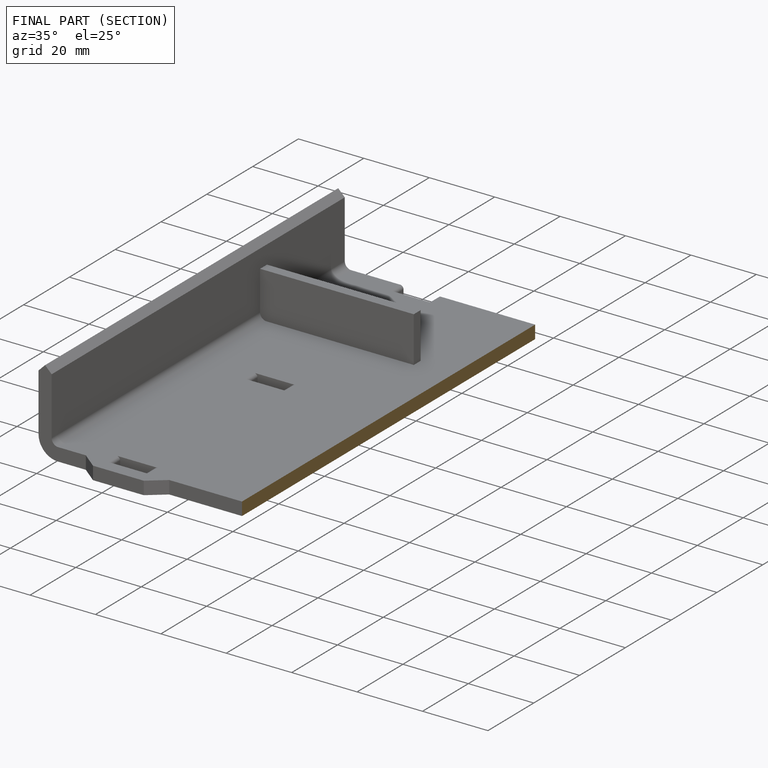
[diagram: finished part — half-section view (interior)]
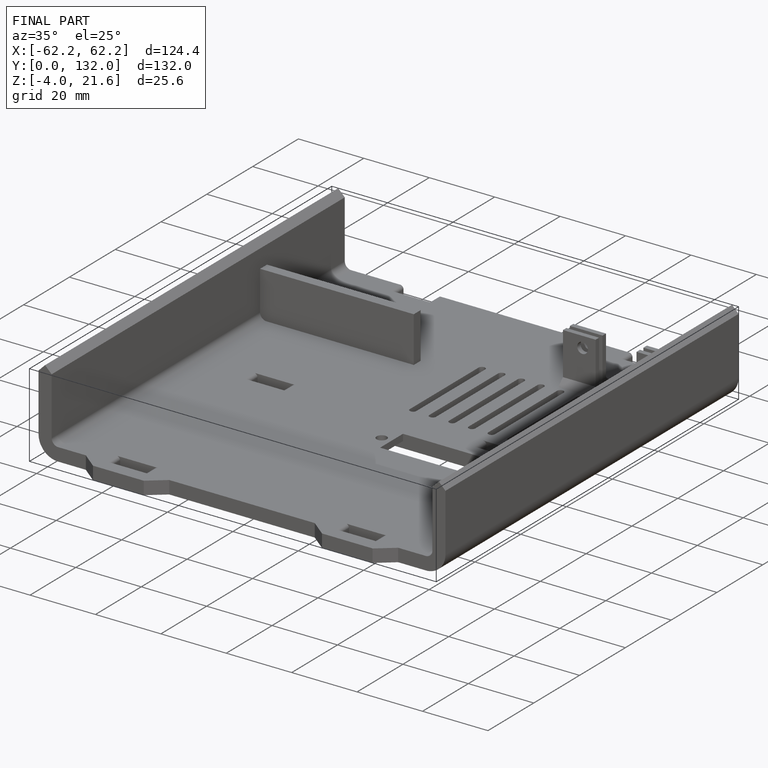
[diagram: finished part — iso view with bounding-box wireframe]
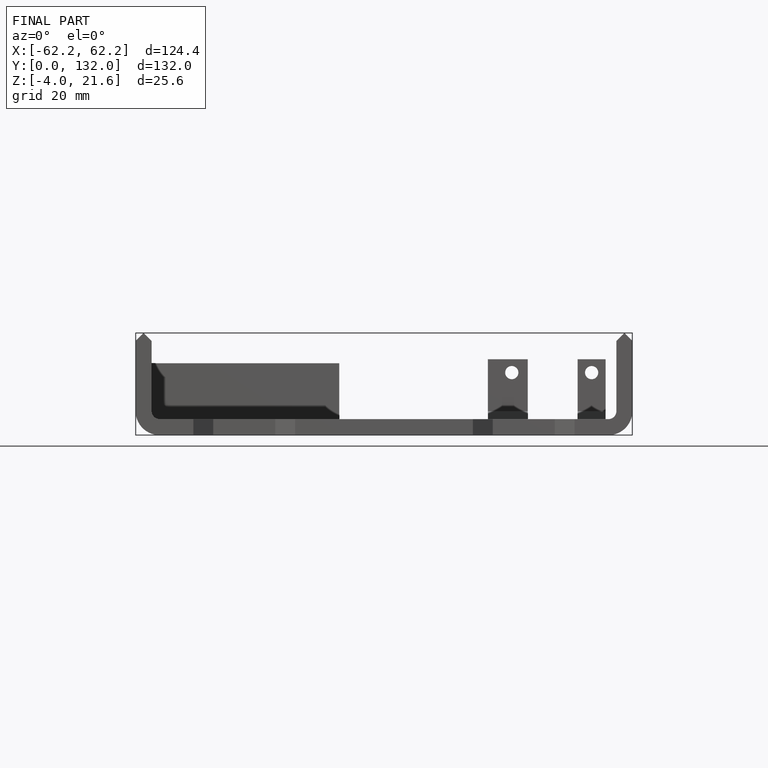
[diagram: finished part — front view with bounding-box wireframe]
